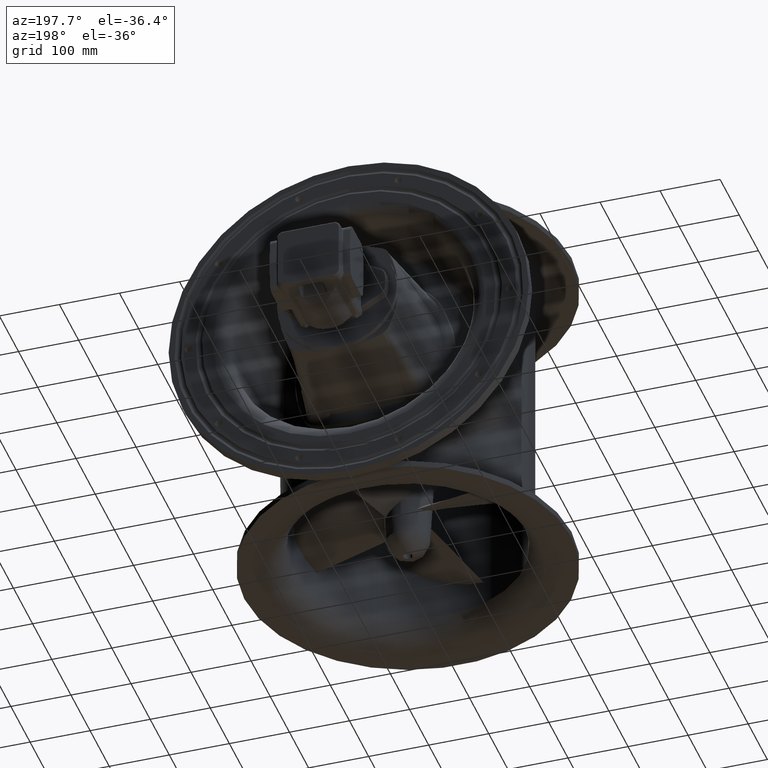
[diagram: clean part render]
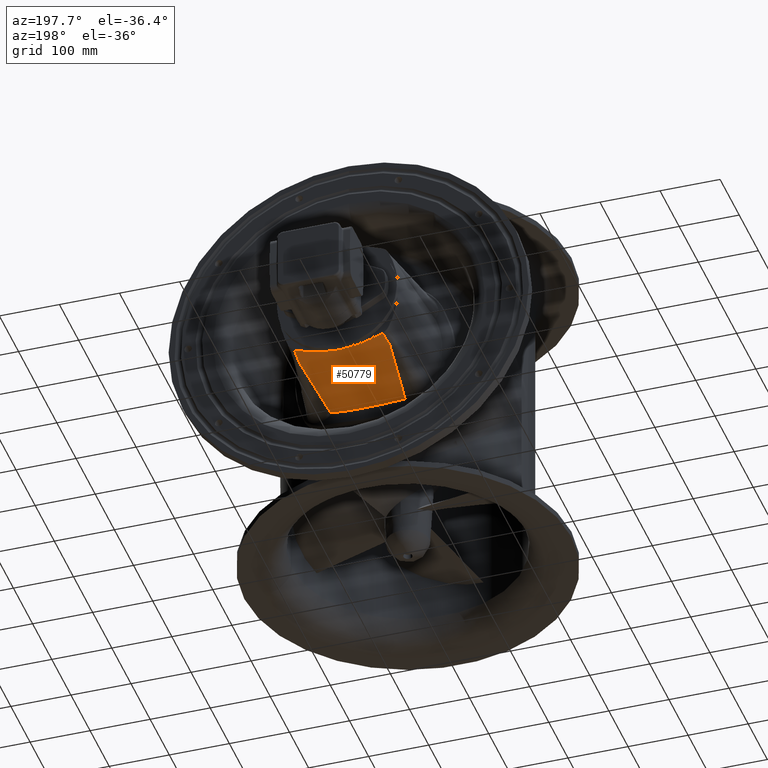
[diagram: same view with one face highlighted and labeled with its STEP entity id]
A machine part, auxiliary view. The second image highlights one B-rep face of the part: STEP entity #50779.
In plain terms, the highlighted conical surface has half-angle 5 deg.
Its self-contained STEP definition (entity closure, byte-faithful):
#3043=CONICAL_SURFACE('',#55714,175.,5.);
#6720=CIRCLE('',#55715,175.);
#14941=FACE_OUTER_BOUND('',#18057,.T.);
#18057=EDGE_LOOP('',(#44560,#44561,#44562,#44563,#44564,#44565));
#18436=B_SPLINE_CURVE_WITH_KNOTS('',3,(#98751,#98752,#98753,#98754,#98755,
#98756,#98757),.UNSPECIFIED.,.F.,.F.,(4,1,1,1,4),(-12.4101129246722,-5.3309859386493,
-3.5539906257662,-1.7769953128831,0.),.UNSPECIFIED.);
#18437=B_SPLINE_CURVE_WITH_KNOTS('',3,(#98759,#98760,#98761,#98762,#98763,
#98764,#98765,#98766,#98767,#98768),.UNSPECIFIED.,.F.,.F.,(4,1,1,1,1,1,
1,4),(-22.6052155728108,-20.7645624374451,-18.9239093020794,-17.0832561667137,
-15.2426030313481,-11.5612967606167,-10.6409701929338,-9.72064362525099),
 .UNSPECIFIED.);
#18438=B_SPLINE_CURVE_WITH_KNOTS('',3,(#98770,#98771,#98772,#98773,#98774,
#98775,#98776),.UNSPECIFIED.,.F.,.F.,(4,1,1,1,4),(-15.0838982647321,-13.3069029556574,
-11.5299076465826,-7.97591702843315,-2.67378536677012),.UNSPECIFIED.);
#18439=B_SPLINE_CURVE_WITH_KNOTS('',3,(#98778,#98779,#98780,#98781),
 .UNSPECIFIED.,.F.,.F.,(4,4),(2.00902162050308,5.10415988422085),
 .UNSPECIFIED.);
#18440=B_SPLINE_CURVE_WITH_KNOTS('',3,(#98784,#98785,#98786,#98787),
 .UNSPECIFIED.,.F.,.F.,(4,4),(-5.10415988422087,-2.00902162050308),
 .UNSPECIFIED.);
#22988=VERTEX_POINT('',#98749);
#22989=VERTEX_POINT('',#98750);
#22990=VERTEX_POINT('',#98758);
#22991=VERTEX_POINT('',#98769);
#22992=VERTEX_POINT('',#98777);
#22993=VERTEX_POINT('',#98782);
#30063=EDGE_CURVE('',#22988,#22989,#18436,.T.);
#30064=EDGE_CURVE('',#22990,#22988,#18437,.T.);
#30065=EDGE_CURVE('',#22991,#22990,#18438,.T.);
#30066=EDGE_CURVE('',#22992,#22991,#18439,.T.);
#30067=EDGE_CURVE('',#22993,#22992,#6720,.T.);
#30068=EDGE_CURVE('',#22989,#22993,#18440,.T.);
#44560=ORIENTED_EDGE('',*,*,#30063,.F.);
#44561=ORIENTED_EDGE('',*,*,#30064,.F.);
#44562=ORIENTED_EDGE('',*,*,#30065,.F.);
#44563=ORIENTED_EDGE('',*,*,#30066,.F.);
#44564=ORIENTED_EDGE('',*,*,#30067,.F.);
#44565=ORIENTED_EDGE('',*,*,#30068,.F.);
#50779=ADVANCED_FACE('',(#14941),#3043,.T.);
#55714=AXIS2_PLACEMENT_3D('',#98748,#67970,#67971);
#55715=AXIS2_PLACEMENT_3D('',#98783,#67972,#67973);
#67970=DIRECTION('center_axis',(-5.02815290480203E-16,-1.,-3.60586168516354E-16));
#67971=DIRECTION('ref_axis',(0.457142857142856,9.08444969694697E-17,-0.889393280929908));
#67972=DIRECTION('center_axis',(5.02815290480203E-16,1.,3.60586168516354E-16));
#67973=DIRECTION('ref_axis',(0.457142857142856,9.08444969694697E-17,-0.889393280929908));
#98748=CARTESIAN_POINT('Origin',(-495.000607936234,868.055165407791,-140.473391638657));
#98749=CARTESIAN_POINT('',(-433.079594543324,715.174048302465,-318.380856642769));
#98750=CARTESIAN_POINT('',(-419.389746099539,837.237057669182,-301.280572841052));
#98751=CARTESIAN_POINT('Ctrl Pts',(-433.079595032614,715.174048431541,-318.380856888595));
#98752=CARTESIAN_POINT('Ctrl Pts',(-430.545677168181,738.424243931488,-315.345126579402));
#98753=CARTESIAN_POINT('Ctrl Pts',(-427.461388923649,767.50949498859,-311.45889776751));
#98754=CARTESIAN_POINT('Ctrl Pts',(-423.687327773723,802.386840659453,-306.563389812868));
#98755=CARTESIAN_POINT('Ctrl Pts',(-421.706203052876,819.849665855354,-304.026421441806));
#98756=CARTESIAN_POINT('Ctrl Pts',(-420.263275595621,831.466255325241,-302.249208406605));
#98757=CARTESIAN_POINT('Ctrl Pts',(-419.389746099538,837.237057669182,-301.280572841052));
#98758=CARTESIAN_POINT('',(-556.921621550744,715.17404826215,-318.380856543549));
#98759=CARTESIAN_POINT('Ctrl Pts',(-556.92162154636,715.174048248119,-318.38085654304));
#98760=CARTESIAN_POINT('Ctrl Pts',(-551.374963204825,716.842710693036,-320.156802071943));
#98761=CARTESIAN_POINT('Ctrl Pts',(-540.032257429015,719.768891130006,-323.263692397625));
#98762=CARTESIAN_POINT('Ctrl Pts',(-522.236411256393,722.820549938037,-326.494081524937));
#98763=CARTESIAN_POINT('Ctrl Pts',(-504.066898895507,724.356211035996,-328.117069172278));
#98764=CARTESIAN_POINT('Ctrl Pts',(-479.885633812514,724.365546992609,-328.126488127661));
#98765=CARTESIAN_POINT('Ctrl Pts',(-458.679041094696,721.640678738768,-325.248281696714));
#98766=CARTESIAN_POINT('Ctrl Pts',(-441.450306468724,717.569048575931,-320.928042434493));
#98767=CARTESIAN_POINT('Ctrl Pts',(-435.852923481183,716.008379465856,-319.268829302467));
#98768=CARTESIAN_POINT('Ctrl Pts',(-433.079594548649,715.174048315068,-318.380856614294));
#98769=CARTESIAN_POINT('',(-570.611469772929,837.23705766918,-301.280572841052));
#98770=CARTESIAN_POINT('Ctrl Pts',(-570.611469772929,837.23705766918,-301.280572841052));
#98771=CARTESIAN_POINT('Ctrl Pts',(-569.737940278719,831.466255337607,-302.24920840453));
#98772=CARTESIAN_POINT('Ctrl Pts',(-568.292375934313,819.850167255974,-304.02770720165));
#98773=CARTESIAN_POINT('Ctrl Pts',(-565.659112157438,796.564853062679,-307.406314181878));
#98774=CARTESIAN_POINT('Ctrl Pts',(-561.937731024071,761.671240214292,-312.237054330405));
#98775=CARTESIAN_POINT('Ctrl Pts',(-558.819558208702,732.587988213164,-316.107113014711));
#98776=CARTESIAN_POINT('Ctrl Pts',(-556.921621497464,715.174048309498,-318.380856567712));
#98777=CARTESIAN_POINT('',(-568.469373571183,868.055165398999,-299.304561364104));
#98778=CARTESIAN_POINT('Ctrl Pts',(-568.469373572178,868.055165380673,-299.304561365387));
#98779=CARTESIAN_POINT('Ctrl Pts',(-569.184934497372,857.782564628609,-299.963798728238));
#98780=CARTESIAN_POINT('Ctrl Pts',(-569.898936833195,847.509860089361,-300.622455909015));
#98781=CARTESIAN_POINT('Ctrl Pts',(-570.61146977293,837.23705766918,-301.280572841052));
#98782=CARTESIAN_POINT('',(-421.531842301286,868.055165398999,-299.304561364104));
#98783=CARTESIAN_POINT('Origin',(-495.000607936234,868.055165407791,-140.473391638657));
#98784=CARTESIAN_POINT('Ctrl Pts',(-419.389746099539,837.237057669182,-301.280572841052));
#98785=CARTESIAN_POINT('Ctrl Pts',(-420.102279039274,847.509860089363,-300.622455909014));
#98786=CARTESIAN_POINT('Ctrl Pts',(-420.816281375096,857.782564628608,-299.963798728238));
#98787=CARTESIAN_POINT('Ctrl Pts',(-421.53184230029,868.055165380673,-299.304561365387));